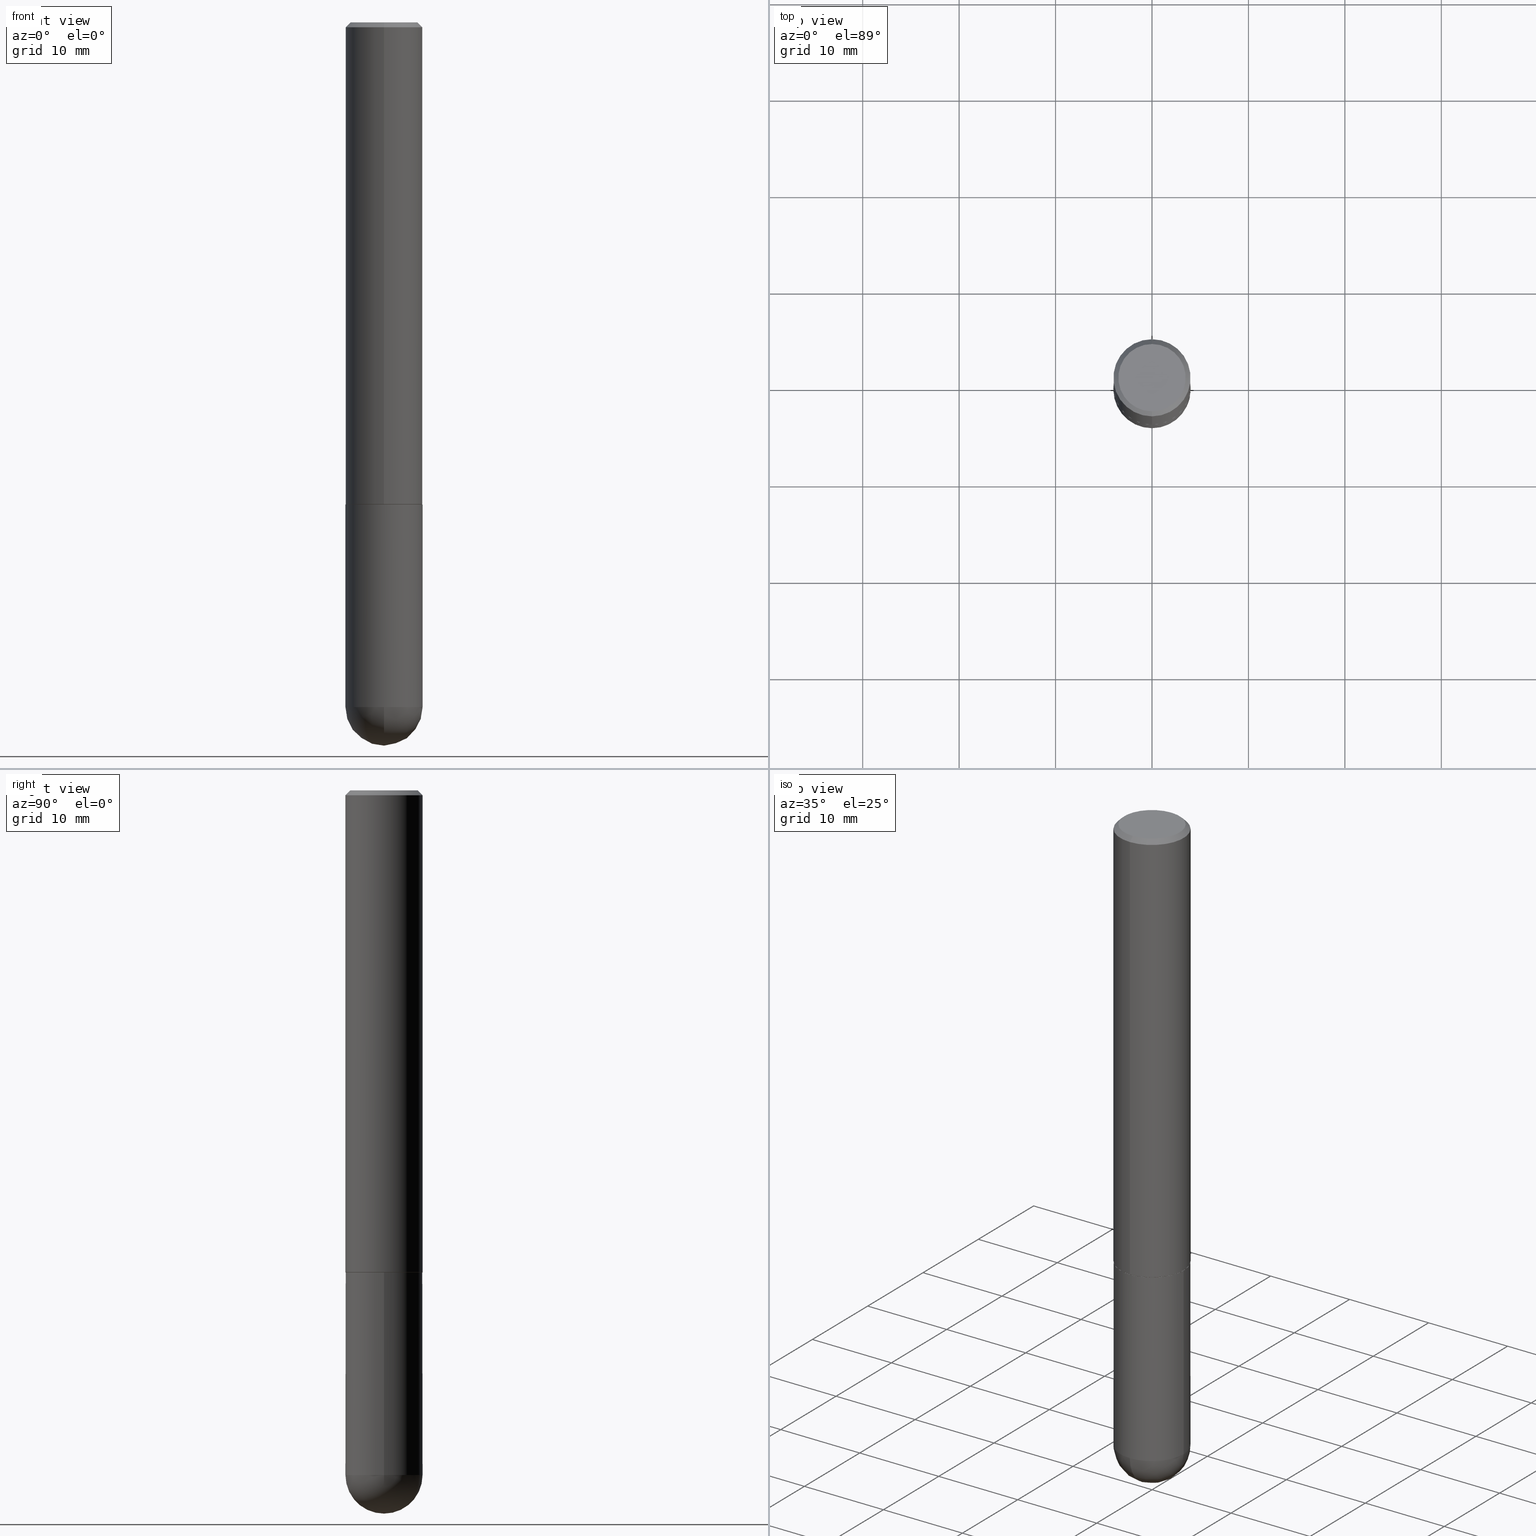
[diagram: canonical four-view strip — front | top / right | iso, engineering-drawing reading convention]
A machine part, canonical four-view strip (front | top / right | iso — engineering-drawing reading convention). The complete STEP part file that produces these views, byte-faithful:
ISO-10303-21;
HEADER;
FILE_DESCRIPTION (( 'STEP AP203' ),
    '1' );
FILE_NAME ('49561.STEP',
    '2024-04-10T12:24:30',
    ( '' ),
    ( '' ),
    'SwSTEP 2.0',
    'SolidWorks 2023',
    '' );
FILE_SCHEMA (( 'CONFIG_CONTROL_DESIGN' ));
ENDSEC;

DATA;
#1 = DIRECTION ( 'NONE',  ( -6.982962677686267499E-15, -1.000000000000000000, 3.491179544618867914E-15 ) ) ;
#2 = DIRECTION ( 'NONE',  ( -6.982962677686265922E-15, -1.000000000000000000, 3.469013325287954477E-15 ) ) ;
#3 = EDGE_LOOP ( 'NONE', ( #264, #52, #389, #22 ) ) ;
#4 = DIRECTION ( 'NONE',  ( -6.982962677686267499E-15, -1.000000000000000000, 3.491179544618867914E-15 ) ) ;
#5 = EDGE_LOOP ( 'NONE', ( #262, #361, #406, #10 ) ) ;
#6 = LOCAL_TIME ( 8, 24, 30.00000000000000000, #400 ) ;
#7 = DIRECTION ( 'NONE',  ( -2.445468806185136597E-29, 3.491481338843145583E-15, 1.000000000000000000 ) ) ;
#8 = VERTEX_POINT ( 'NONE', #401 ) ;
#9 = DIRECTION ( 'NONE',  ( -2.445468806185136597E-29, 3.491481338843145583E-15, 1.000000000000000000 ) ) ;
#10 = ORIENTED_EDGE ( 'NONE', *, *, #65, .F. ) ;
#11 = ADVANCED_BREP_SHAPE_REPRESENTATION ( '49561', ( #322, #46, #391 ), #281 ) ;
#12 = ORIENTED_EDGE ( 'NONE', *, *, #252, .F. ) ;
#13 = CLOSED_SHELL ( 'NONE', ( #309, #313, #259, #112, #342 ) ) ;
#14 = PERSON_AND_ORGANIZATION ( #316, #213 ) ;
#15 = LOCAL_TIME ( 8, 24, 30.00000000000000000, #243 ) ;
#16 = DIRECTION ( 'NONE',  ( -1.000000000000000000, 6.982962677686265922E-15, -4.876176775795935793E-29 ) ) ;
#17 = DIRECTION ( 'NONE',  ( -4.937700262164294818E-15, -0.7071067811865088260, 0.7071067811865862085 ) ) ;
#18 = EDGE_CURVE ( 'NONE', #45, #38, #117, .T. ) ;
#19 = LINE ( 'NONE', #57, #212 ) ;
#20 = EDGE_CURVE ( 'NONE', #72, #384, #200, .T. ) ;
#21 = COORDINATED_UNIVERSAL_TIME_OFFSET ( 5, 0, .BEHIND. ) ;
#22 = ORIENTED_EDGE ( 'NONE', *, *, #20, .F. ) ;
#23 = CIRCLE ( 'NONE', #362, 0.1564999999999999447 ) ;
#24 = CARTESIAN_POINT ( 'NONE',  ( 4.825502781678292621E-29, -6.849379294212400691E-15, -1.967499999999999805 ) ) ;
#25 = DIRECTION ( 'NONE',  ( 1.000000000000000000, -6.982962677686261977E-15, 0.000000000000000000 ) ) ;
#26 = EDGE_CURVE ( 'NONE', #168, #302, #305, .T. ) ;
#27 = CARTESIAN_POINT ( 'NONE',  ( 4.905212484552274391E-31, -6.962520248246417464E-17, -0.02000000000000003164 ) ) ;
#28 = CARTESIAN_POINT ( 'NONE',  ( -1.011923454671300645E-15, -0.1375000000000000666, 3.662865253003379997E-16 ) ) ;
#29 = EDGE_CURVE ( 'NONE', #168, #38, #308, .T. ) ;
#30 = CARTESIAN_POINT ( 'NONE',  ( 0.000000000000000000, 0.000000000000000000, 0.000000000000000000 ) ) ;
#31 = EDGE_CURVE ( 'NONE', #384, #45, #404, .T. ) ;
#32 = CARTESIAN_POINT ( 'NONE',  ( 6.504699176015425459E-29, -1.023392015460829390E-14, -2.795299999999999674 ) ) ;
#33 = LOCAL_TIME ( 8, 24, 30.00000000000000000, #256 ) ;
#34 = APPLICATION_CONTEXT ( 'configuration controlled 3d designs of mechanical parts and assemblies' ) ;
#35 = CIRCLE ( 'NONE', #82, 0.1574999999999999456 ) ;
#36 = LOCAL_TIME ( 8, 24, 30.00000000000000000, #21 ) ;
#37 = PERSON_AND_ORGANIZATION ( #316, #213 ) ;
#38 = VERTEX_POINT ( 'NONE', #274 ) ;
#39 =( NAMED_UNIT ( * ) SI_UNIT ( $, .STERADIAN. ) SOLID_ANGLE_UNIT ( ) );
#40 = ORIENTED_EDGE ( 'NONE', *, *, #183, .F. ) ;
#41 = EDGE_CURVE ( 'NONE', #302, #168, #149, .T. ) ;
#42 = PLANE ( 'NONE',  #296 ) ;
#43 = ORIENTED_EDGE ( 'NONE', *, *, #29, .F. ) ;
#44 = AXIS2_PLACEMENT_3D ( 'NONE', #32, #128, #379 ) ;
#45 = VERTEX_POINT ( 'NONE', #340 ) ;
#46 = MANIFOLD_SOLID_BREP ( 'Body-Move/Copy2[2]', #188 ) ;
#47 = CARTESIAN_POINT ( 'NONE',  ( 6.835818953929311707E-29, -9.759737786468243605E-15, -2.795299999999999674 ) ) ;
#48 = ORIENTED_EDGE ( 'NONE', *, *, #183, .T. ) ;
#49 = DATE_TIME_ROLE ( 'classification_date' ) ;
#50 = DIRECTION ( 'NONE',  ( -6.982962677686265922E-15, -1.000000000000000000, 3.481260124123204048E-15 ) ) ;
#51 = CIRCLE ( 'NONE', #261, 0.1575000000000001954 ) ;
#52 = ORIENTED_EDGE ( 'NONE', *, *, #298, .T. ) ;
#53 = DIRECTION ( 'NONE',  ( 6.982962677686265922E-15, 1.000000000000000000, -3.469013325287954477E-15 ) ) ;
#54 = CC_DESIGN_PERSON_AND_ORGANIZATION_ASSIGNMENT ( #240, #364, ( #62 ) ) ;
#55 = DIRECTION ( 'NONE',  ( 1.000000000000000000, -6.982962677686261977E-15, 0.000000000000000000 ) ) ;
#56 = AXIS2_PLACEMENT_3D ( 'NONE', #30, #353, #89 ) ;
#57 = CARTESIAN_POINT ( 'NONE',  ( -1.080528434649015385E-15, -0.1575000000000000289, -0.01999999999999948347 ) ) ;
#58 = AXIS2_PLACEMENT_3D ( 'NONE', #123, #68, #403 ) ;
#59 = EDGE_CURVE ( 'NONE', #384, #326, #311, .T. ) ;
#60 = CARTESIAN_POINT ( 'NONE',  ( -0.1575000000000000011, 1.119104808822157801E-15, -7.747322767151475583E-30 ) ) ;
#61 = LINE ( 'NONE', #186, #184 ) ;
#62 = PRODUCT_DEFINITION_FORMATION_WITH_SPECIFIED_SOURCE ( 'ANY', '', #303, .NOT_KNOWN. ) ;
#63 = DIRECTION ( 'NONE',  ( 1.000000000000000000, -6.982962677686261977E-15, 0.000000000000000000 ) ) ;
#64 = ORIENTED_EDGE ( 'NONE', *, *, #59, .F. ) ;
#65 = EDGE_CURVE ( 'NONE', #45, #384, #51, .T. ) ;
#66 = CARTESIAN_POINT ( 'NONE',  ( 6.896594947516873652E-29, -1.077418437193280573E-14, -2.952799999999999869 ) ) ;
#67 = ADVANCED_FACE ( 'NONE', ( #151 ), #239, .F. ) ;
#68 = DIRECTION ( 'NONE',  ( -1.000000000000000000, 6.982962677686265922E-15, -4.883557194083112901E-29 ) ) ;
#69 = DIRECTION ( 'NONE',  ( 1.000000000000000000, 0.000000000000000000, 0.000000000000000000 ) ) ;
#70 = VECTOR ( 'NONE', #314, 39.37007874015748143 ) ;
#71 = LENGTH_MEASURE_WITH_UNIT ( LENGTH_MEASURE( 0.02539999999999999897 ), #130 );
#72 = VERTEX_POINT ( 'NONE', #205 ) ;
#73 = VERTEX_POINT ( 'NONE', #373 ) ;
#74 = DIRECTION ( 'NONE',  ( 2.452606242276133237E-29, -3.481260124123204048E-15, -1.000000000000000000 ) ) ;
#75 = ORIENTED_EDGE ( 'NONE', *, *, #223, .T. ) ;
#76 = AXIS2_PLACEMENT_3D ( 'NONE', #179, #371, #83 ) ;
#77 = FACE_OUTER_BOUND ( 'NONE', #139, .T. ) ;
#78 = ORIENTED_EDGE ( 'NONE', *, *, #331, .F. ) ;
#79 = CC_DESIGN_DATE_AND_TIME_ASSIGNMENT ( #147, #49, ( #369 ) ) ;
#80 = DIRECTION ( 'NONE',  ( -2.452606242276133797E-29, 3.481260124123203654E-15, 1.000000000000000000 ) ) ;
#81 = FACE_OUTER_BOUND ( 'NONE', #294, .T. ) ;
#82 = AXIS2_PLACEMENT_3D ( 'NONE', #350, #251, #2 ) ;
#83 = DIRECTION ( 'NONE',  ( -6.982962677686265922E-15, -1.000000000000000000, 3.481260124123204048E-15 ) ) ;
#84 = APPROVAL ( #145, 'UNSPECIFIED' ) ;
#85 = DIRECTION ( 'NONE',  ( -6.982962677686265922E-15, -1.000000000000000000, 3.481260124123203654E-15 ) ) ;
#86 = DIRECTION ( 'NONE',  ( -6.982962677686265922E-15, -1.000000000000000000, 3.469013325287948955E-15 ) ) ;
#87 = ADVANCED_FACE ( 'NONE', ( #277 ), #347, .T. ) ;
#88 = AXIS2_PLACEMENT_3D ( 'NONE', #174, #148, #55 ) ;
#89 = DIRECTION ( 'NONE',  ( -6.982962677686265922E-15, -1.000000000000000000, 3.481260124123204048E-15 ) ) ;
#90 = LOCAL_TIME ( 8, 24, 30.00000000000000000, #169 ) ;
#91 = DIRECTION ( 'NONE',  ( 6.982962677686265922E-15, 1.000000000000000000, -3.469013325287946588E-15 ) ) ;
#92 = DIRECTION ( 'NONE',  ( -2.452606242276133797E-29, 3.481260124123203654E-15, 1.000000000000000000 ) ) ;
#93 = CARTESIAN_POINT ( 'NONE',  ( 0.1575000000000000011, -9.416176022726072770E-15, -2.795299999999999674 ) ) ;
#94 = CIRCLE ( 'NONE', #160, 0.1575000000000000011 ) ;
#95 = DIRECTION ( 'NONE',  ( -2.452606242276133797E-29, 3.481260124123203654E-15, 1.000000000000000000 ) ) ;
#96 = EDGE_LOOP ( 'NONE', ( #194, #48, #101, #365 ) ) ;
#97 = FACE_OUTER_BOUND ( 'NONE', #5, .T. ) ;
#98 = ORIENTED_EDGE ( 'NONE', *, *, #397, .T. ) ;
#99 = CIRCLE ( 'NONE', #319, 0.1575000000000000011 ) ;
#100 = DIRECTION ( 'NONE',  ( 1.000000000000000000, -6.982962677686268288E-15, 0.000000000000000000 ) ) ;
#101 = ORIENTED_EDGE ( 'NONE', *, *, #412, .F. ) ;
#102 = PERSON_AND_ORGANIZATION_ROLE ( 'design_owner' ) ;
#103 = VERTEX_POINT ( 'NONE', #119 ) ;
#104 =( NAMED_UNIT ( * ) PLANE_ANGLE_UNIT ( ) SI_UNIT ( $, .RADIAN. ) );
#105 = ORIENTED_EDGE ( 'NONE', *, *, #220, .F. ) ;
#106 = APPROVAL_PERSON_ORGANIZATION ( #304, #84, #312 ) ;
#107 = PRODUCT_DEFINITION ( 'UNKNOWN', '', #62, #229 ) ;
#108 = AXIS2_PLACEMENT_3D ( 'NONE', #284, #92, #217 ) ;
#109 = APPROVAL_STATUS ( 'not_yet_approved' ) ;
#110 = ORIENTED_EDGE ( 'NONE', *, *, #124, .T. ) ;
#111 = CARTESIAN_POINT ( 'NONE',  ( 1.119104808822158195E-15, 0.1575000000000000844, -5.482984695494049531E-16 ) ) ;
#112 = ADVANCED_FACE ( 'NONE', ( #348 ), #398, .F. ) ;
#113 = CALENDAR_DATE ( 2024, 10, 4 ) ;
#114 = DIRECTION ( 'NONE',  ( -2.452606242276134078E-29, 3.481260124123204048E-15, 1.000000000000000000 ) ) ;
#115 = AXIS2_PLACEMENT_3D ( 'NONE', #394, #368, #245 ) ;
#116 = DATE_TIME_ROLE ( 'creation_date' ) ;
#117 = LINE ( 'NONE', #111, #70 ) ;
#118 = VERTEX_POINT ( 'NONE', #143 ) ;
#119 = CARTESIAN_POINT ( 'NONE',  ( -0.1575000000000000011, -7.197254592168330052E-15, -1.968499999999999694 ) ) ;
#120 = VECTOR ( 'NONE', #17, 39.37007874015748143 ) ;
#121 = CIRCLE ( 'NONE', #141, 0.1574999999999999456 ) ;
#122 = CARTESIAN_POINT ( 'NONE',  ( 0.000000000000000000, 0.000000000000000000, 0.000000000000000000 ) ) ;
#123 = CARTESIAN_POINT ( 'NONE',  ( 6.504699176015425459E-29, -1.023392015460829390E-14, -2.795299999999999674 ) ) ;
#124 = EDGE_CURVE ( 'NONE', #302, #326, #19, .T. ) ;
#125 = UNCERTAINTY_MEASURE_WITH_UNIT (LENGTH_MEASURE( 1.000000000000000082E-05 ), #224, 'distance_accuracy_value', 'NONE');
#126 = APPLICATION_CONTEXT ( 'configuration controlled 3d designs of mechanical parts and assemblies' ) ;
#127 = DIRECTION ( 'NONE',  ( -2.445468806185136877E-29, 3.491481338843145188E-15, 1.000000000000000000 ) ) ;
#128 = DIRECTION ( 'NONE',  ( -1.000000000000000000, 7.105427357601001070E-15, -4.926315508542082329E-29 ) ) ;
#129 = ADVANCED_FACE ( 'NONE', ( #270 ), #226, .T. ) ;
#130 =( LENGTH_UNIT ( ) NAMED_UNIT ( * ) SI_UNIT ( $, .METRE. ) );
#131 = EDGE_LOOP ( 'NONE', ( #282, #230 ) ) ;
#132 = DIRECTION ( 'NONE',  ( -2.452606242276133797E-29, 3.481260124123203654E-15, 1.000000000000000000 ) ) ;
#133 = EDGE_LOOP ( 'NONE', ( #199, #392 ) ) ;
#134 = AXIS2_PLACEMENT_3D ( 'NONE', #411, #159, #351 ) ;
#135 = ADVANCED_FACE ( 'NONE', ( #81 ), #399, .T. ) ;
#136 = ORIENTED_EDGE ( 'NONE', *, *, #331, .T. ) ;
#137 = PERSON_AND_ORGANIZATION_ROLE ( 'creator' ) ;
#138 = EDGE_CURVE ( 'NONE', #232, #266, #341, .T. ) ;
#139 = EDGE_LOOP ( 'NONE', ( #330, #300, #297, #238, #164 ) ) ;
#140 = ORIENTED_EDGE ( 'NONE', *, *, #65, .T. ) ;
#141 = AXIS2_PLACEMENT_3D ( 'NONE', #27, #214, #408 ) ;
#142 = CC_DESIGN_SECURITY_CLASSIFICATION ( #369, ( #62 ) ) ;
#143 = CARTESIAN_POINT ( 'NONE',  ( 1.115552095143405811E-15, 0.1564999999999930891, -1.968500000000000583 ) ) ;
#144 = CC_DESIGN_PERSON_AND_ORGANIZATION_ASSIGNMENT ( #337, #343, ( #62 ) ) ;
#145 = APPROVAL_STATUS ( 'not_yet_approved' ) ;
#146 = DIRECTION ( 'NONE',  ( -2.452606242276133797E-29, 3.481260124123203654E-15, 1.000000000000000000 ) ) ;
#147 = DATE_AND_TIME ( #210, #6 ) ;
#148 = DIRECTION ( 'NONE',  ( -2.445468806185136597E-29, 3.491481338843145583E-15, 1.000000000000000000 ) ) ;
#149 = CIRCLE ( 'NONE', #218, 0.1375000000000000666 ) ;
#150 = CALENDAR_DATE ( 2024, 10, 4 ) ;
#151 = FACE_OUTER_BOUND ( 'NONE', #133, .T. ) ;
#152 = CARTESIAN_POINT ( 'NONE',  ( 2.756404244058457991E-45, -3.912474825922058918E-31, -1.123867417666027294E-16 ) ) ;
#153 = CC_DESIGN_DATE_AND_TIME_ASSIGNMENT ( #172, #116, ( #107 ) ) ;
#154 = CARTESIAN_POINT ( 'NONE',  ( 6.504699176015425459E-29, -1.023392015460829390E-14, -2.795299999999999674 ) ) ;
#155 = CONICAL_SURFACE ( 'NONE', #108, 0.1564999999999999447, 0.7853981633973970977 ) ;
#156 = CARTESIAN_POINT ( 'NONE',  ( 6.835818953929311707E-29, -9.759737786468243605E-15, -2.795299999999999674 ) ) ;
#157 = FACE_OUTER_BOUND ( 'NONE', #386, .T. ) ;
#158 = CARTESIAN_POINT ( 'NONE',  ( 6.504699176015425459E-29, -1.023392015460829390E-14, -2.795299999999999674 ) ) ;
#159 = DIRECTION ( 'NONE',  ( -2.452606242276133797E-29, 3.481260124123203654E-15, 1.000000000000000000 ) ) ;
#160 = AXIS2_PLACEMENT_3D ( 'NONE', #335, #9, #100 ) ;
#161 = DATE_AND_TIME ( #196, #33 ) ;
#162 = EDGE_LOOP ( 'NONE', ( #40, #328, #227, #12 ) ) ;
#163 = CARTESIAN_POINT ( 'NONE',  ( 0.000000000000000000, 0.000000000000000000, 0.000000000000000000 ) ) ;
#164 = ORIENTED_EDGE ( 'NONE', *, *, #366, .F. ) ;
#165 = ORIENTED_EDGE ( 'NONE', *, *, #18, .T. ) ;
#166 = AXIS2_PLACEMENT_3D ( 'NONE', #47, #7, #327 ) ;
#167 = ORIENTED_EDGE ( 'NONE', *, *, #301, .T. ) ;
#168 = VERTEX_POINT ( 'NONE', #175 ) ;
#169 = COORDINATED_UNIVERSAL_TIME_OFFSET ( 5, 0, .BEHIND. ) ;
#170 = CARTESIAN_POINT ( 'NONE',  ( 1.099816621735634812E-15, 0.1574999999999931177, -1.968500000000000361 ) ) ;
#171 = AXIS2_PLACEMENT_3D ( 'NONE', #191, #228, #198 ) ;
#172 = DATE_AND_TIME ( #207, #36 ) ;
#173 = CARTESIAN_POINT ( 'NONE',  ( -1.092833659057852162E-15, -0.1565000000000068281, -1.968499999999999472 ) ) ;
#174 = CARTESIAN_POINT ( 'NONE',  ( 6.835818953929311707E-29, -9.759737786468243605E-15, -2.795299999999999674 ) ) ;
#175 = CARTESIAN_POINT ( 'NONE',  ( 1.029986994958724576E-15, 0.1375000000000000666, -5.910600088335435079E-16 ) ) ;
#176 = APPROVAL_PERSON_ORGANIZATION ( #37, #255, #360 ) ;
#177 = AXIS2_PLACEMENT_3D ( 'NONE', #154, #250, #221 ) ;
#178 = CC_DESIGN_PERSON_AND_ORGANIZATION_ASSIGNMENT ( #383, #137, ( #107 ) ) ;
#179 = CARTESIAN_POINT ( 'NONE',  ( 4.827955387920569844E-29, -6.852860554336525962E-15, -1.968500000000000139 ) ) ;
#180 = DIRECTION ( 'NONE',  ( -2.445468806185136877E-29, 3.491481338843145188E-15, 1.000000000000000000 ) ) ;
#181 = SPHERICAL_SURFACE ( 'NONE', #58, 0.1575000000000003064 ) ;
#182 = ORIENTED_EDGE ( 'NONE', *, *, #292, .T. ) ;
#183 = EDGE_CURVE ( 'NONE', #197, #222, #380, .T. ) ;
#184 = VECTOR ( 'NONE', #127, 39.37007874015748143 ) ;
#185 = LINE ( 'NONE', #60, #203 ) ;
#186 = CARTESIAN_POINT ( 'NONE',  ( 0.1575000000000000011, -1.099816621735586889E-15, 7.679978421878598033E-30 ) ) ;
#187 = DIRECTION ( 'NONE',  ( 5.024295867787803643E-15, 0.7071067811865135999, 0.7071067811865812125 ) ) ;
#188 = CLOSED_SHELL ( 'NONE', ( #279, #215, #129, #135, #87, #375, #67, #407 ) ) ;
#189 = CIRCLE ( 'NONE', #349, 0.1575000000000000011 ) ;
#190 = ORIENTED_EDGE ( 'NONE', *, *, #29, .T. ) ;
#191 = CARTESIAN_POINT ( 'NONE',  ( 0.000000000000000000, 0.000000000000000000, 0.000000000000000000 ) ) ;
#192 = ORIENTED_EDGE ( 'NONE', *, *, #223, .F. ) ;
#193 = DIRECTION ( 'NONE',  ( 0.000000000000000000, 0.000000000000000000, 1.000000000000000000 ) ) ;
#194 = ORIENTED_EDGE ( 'NONE', *, *, #209, .F. ) ;
#195 = EDGE_CURVE ( 'NONE', #72, #118, #23, .T. ) ;
#196 = CALENDAR_DATE ( 2024, 10, 4 ) ;
#197 = VERTEX_POINT ( 'NONE', #66 ) ;
#198 = DIRECTION ( 'NONE',  ( 1.000000000000000000, -6.982962677686265922E-15, 4.876176775795935232E-29 ) ) ;
#199 = ORIENTED_EDGE ( 'NONE', *, *, #195, .F. ) ;
#200 = LINE ( 'NONE', #173, #120 ) ;
#201 = DATE_AND_TIME ( #113, #15 ) ;
#202 = CARTESIAN_POINT ( 'NONE',  ( 4.905212484552274391E-31, -6.962520248246417464E-17, -0.02000000000000003164 ) ) ;
#203 = VECTOR ( 'NONE', #180, 39.37007874015748143 ) ;
#204 = SECURITY_CLASSIFICATION_LEVEL ( 'unclassified' ) ;
#205 = CARTESIAN_POINT ( 'NONE',  ( -1.092833659057852162E-15, -0.1565000000000068281, -1.968499999999999472 ) ) ;
#206 = PRODUCT_DEFINITION_SHAPE ( 'NONE', 'NONE',  #107 ) ;
#207 = CALENDAR_DATE ( 2024, 10, 4 ) ;
#208 = DIRECTION ( 'NONE',  ( -6.982962677686265922E-15, -1.000000000000000000, 3.481260124123203654E-15 ) ) ;
#209 = EDGE_CURVE ( 'NONE', #197, #266, #268, .T. ) ;
#210 = CALENDAR_DATE ( 2024, 10, 4 ) ;
#211 = DIRECTION ( 'NONE',  ( 4.937700262164543309E-15, 0.7071067811865444641, -0.7071067811865503483 ) ) ;
#212 = VECTOR ( 'NONE', #244, 39.37007874015748854 ) ;
#213 = ORGANIZATION ( 'UNSPECIFIED', 'UNSPECIFIED', '' ) ;
#214 = DIRECTION ( 'NONE',  ( -2.452606242276133797E-29, 3.481260124123203654E-15, 1.000000000000000000 ) ) ;
#215 = ADVANCED_FACE ( 'NONE', ( #318 ), #253, .T. ) ;
#216 = CARTESIAN_POINT ( 'NONE',  ( -1.080528434649015385E-15, -0.1575000000000000289, -0.01999999999999948347 ) ) ;
#217 = DIRECTION ( 'NONE',  ( -6.982962677686267499E-15, -1.000000000000000000, 3.491179544618867914E-15 ) ) ;
#218 = AXIS2_PLACEMENT_3D ( 'NONE', #278, #80, #208 ) ;
#219 = DIRECTION ( 'NONE',  ( -2.445468806185136597E-29, 3.491481338843145583E-15, 1.000000000000000000 ) ) ;
#220 = EDGE_CURVE ( 'NONE', #232, #73, #61, .T. ) ;
#221 = DIRECTION ( 'NONE',  ( 6.982962677686265133E-15, 1.000000000000000000, 0.000000000000000000 ) ) ;
#222 = VERTEX_POINT ( 'NONE', #381 ) ;
#223 = EDGE_CURVE ( 'NONE', #38, #326, #121, .T. ) ;
#224 =( CONVERSION_BASED_UNIT ( 'INCH', #71 ) LENGTH_UNIT ( ) NAMED_UNIT ( #345 ) );
#225 = APPROVAL_STATUS ( 'not_yet_approved' ) ;
#226 = CONICAL_SURFACE ( 'NONE', #115, 0.1574999999999999456, 0.7853981633974476129 ) ;
#227 = ORIENTED_EDGE ( 'NONE', *, *, #138, .F. ) ;
#228 = DIRECTION ( 'NONE',  ( -2.445468806185136597E-29, 3.491481338843145583E-15, 1.000000000000000000 ) ) ;
#229 = DESIGN_CONTEXT ( 'detailed design', #34, 'design' ) ;
#230 = ORIENTED_EDGE ( 'NONE', *, *, #41, .T. ) ;
#231 = APPLICATION_PROTOCOL_DEFINITION ( 'international standard', 'config_control_design', 1994, #34 ) ;
#232 = VERTEX_POINT ( 'NONE', #93 ) ;
#233 = CYLINDRICAL_SURFACE ( 'NONE', #171, 0.1575000000000000011 ) ;
#234 = EDGE_LOOP ( 'NONE', ( #98, #334 ) ) ;
#235 = AXIS2_PLACEMENT_3D ( 'NONE', #122, #286, #323 ) ;
#236 = CIRCLE ( 'NONE', #288, 0.1575000000000000011 ) ;
#237 = CC_DESIGN_PERSON_AND_ORGANIZATION_ASSIGNMENT ( #387, #102, ( #303 ) ) ;
#238 = ORIENTED_EDGE ( 'NONE', *, *, #220, .T. ) ;
#239 = PLANE ( 'NONE',  #76 ) ;
#240 = PERSON_AND_ORGANIZATION ( #316, #213 ) ;
#241 = DIRECTION ( 'NONE',  ( -2.452606242276133797E-29, 3.481260124123203654E-15, 1.000000000000000000 ) ) ;
#242 = CC_DESIGN_APPROVAL ( #255, ( #107 ) ) ;
#243 = COORDINATED_UNIVERSAL_TIME_OFFSET ( 5, 0, .BEHIND. ) ;
#244 = DIRECTION ( 'NONE',  ( -4.851104656540959542E-15, -0.7071067811865493491, -0.7071067811865454633 ) ) ;
#245 = DIRECTION ( 'NONE',  ( 6.982962677686265922E-15, 1.000000000000000000, -3.469013325287954477E-15 ) ) ;
#246 = DIRECTION ( 'NONE',  ( -2.452606242276133797E-29, 3.481260124123203654E-15, 1.000000000000000000 ) ) ;
#247 = AXIS2_PLACEMENT_3D ( 'NONE', #170, #306, #16 ) ;
#248 = CARTESIAN_POINT ( 'NONE',  ( 6.835818953929311707E-29, -9.759737786468243605E-15, -2.795299999999999674 ) ) ;
#249 = ORIENTED_EDGE ( 'NONE', *, *, #31, .T. ) ;
#250 = DIRECTION ( 'NONE',  ( 1.000000000000000000, -6.982962677686265922E-15, 4.883557194083112340E-29 ) ) ;
#251 = DIRECTION ( 'NONE',  ( -2.452606242276133797E-29, 3.481260124123203654E-15, 1.000000000000000000 ) ) ;
#252 = EDGE_CURVE ( 'NONE', #222, #232, #236, .T. ) ;
#253 = CYLINDRICAL_SURFACE ( 'NONE', #56, 0.1575000000000000844 ) ;
#254 = ORIENTED_EDGE ( 'NONE', *, *, #397, .F. ) ;
#255 = APPROVAL ( #225, 'UNSPECIFIED' ) ;
#256 = COORDINATED_UNIVERSAL_TIME_OFFSET ( 5, 0, .BEHIND. ) ;
#257 = MECHANICAL_CONTEXT ( 'NONE', #126, 'mechanical' ) ;
#258 = EDGE_LOOP ( 'NONE', ( #249, #165, #78, #64 ) ) ;
#259 = ADVANCED_FACE ( 'NONE', ( #354 ), #181, .T. ) ;
#260 = CARTESIAN_POINT ( 'NONE',  ( 4.827955387920569844E-29, -6.852860554336525962E-15, -1.968500000000000139 ) ) ;
#261 = AXIS2_PLACEMENT_3D ( 'NONE', #374, #241, #86 ) ;
#262 = ORIENTED_EDGE ( 'NONE', *, *, #298, .F. ) ;
#263 = CARTESIAN_POINT ( 'NONE',  ( -1.099816621735539951E-15, -0.1575000000000070510, -1.967499999999999138 ) ) ;
#264 = ORIENTED_EDGE ( 'NONE', *, *, #195, .T. ) ;
#265 = FACE_OUTER_BOUND ( 'NONE', #131, .T. ) ;
#266 = VERTEX_POINT ( 'NONE', #287 ) ;
#267 = ORIENTED_EDGE ( 'NONE', *, *, #59, .T. ) ;
#268 = CIRCLE ( 'NONE', #177, 0.1575000000000003064 ) ;
#269 = APPROVAL_PERSON_ORGANIZATION ( #14, #393, #273 ) ;
#270 = FACE_OUTER_BOUND ( 'NONE', #358, .T. ) ;
#271 = SHAPE_DEFINITION_REPRESENTATION ( #206, #11 ) ;
#272 = DIRECTION ( 'NONE',  ( -6.982962677686265922E-15, -1.000000000000000000, 3.469013325287948955E-15 ) ) ;
#273 = APPROVAL_ROLE ( '' ) ;
#274 = CARTESIAN_POINT ( 'NONE',  ( 1.099816621735586889E-15, 0.1574999999999998901, -0.02000000000000057634 ) ) ;
#275 = AXIS2_PLACEMENT_3D ( 'NONE', #152, #246, #85 ) ;
#276 = VECTOR ( 'NONE', #187, 39.37007874015748854 ) ;
#277 = FACE_OUTER_BOUND ( 'NONE', #390, .T. ) ;
#278 = CARTESIAN_POINT ( 'NONE',  ( 2.756404244058457991E-45, -3.912474825922058918E-31, -1.123867417666027294E-16 ) ) ;
#279 = ADVANCED_FACE ( 'NONE', ( #378 ), #155, .T. ) ;
#280 = CYLINDRICAL_SURFACE ( 'NONE', #235, 0.1575000000000000011 ) ;
#281 =( GEOMETRIC_REPRESENTATION_CONTEXT ( 3 ) GLOBAL_UNCERTAINTY_ASSIGNED_CONTEXT ( ( #125 ) ) GLOBAL_UNIT_ASSIGNED_CONTEXT ( ( #224, #104, #39 ) ) REPRESENTATION_CONTEXT ( 'NONE', 'WORKASPACE' ) );
#282 = ORIENTED_EDGE ( 'NONE', *, *, #26, .T. ) ;
#283 = AXIS2_PLACEMENT_3D ( 'NONE', #158, #377, #91 ) ;
#284 = CARTESIAN_POINT ( 'NONE',  ( 4.827955387920569844E-29, -6.852860554336525962E-15, -1.968500000000000139 ) ) ;
#285 = EDGE_CURVE ( 'NONE', #118, #72, #385, .T. ) ;
#286 = DIRECTION ( 'NONE',  ( -2.445468806185136597E-29, 3.491481338843145583E-15, 1.000000000000000000 ) ) ;
#287 = CARTESIAN_POINT ( 'NONE',  ( 1.099816621735654731E-15, 0.1574999999999901201, -2.795300000000000118 ) ) ;
#288 = AXIS2_PLACEMENT_3D ( 'NONE', #156, #219, #63 ) ;
#289 = LINE ( 'NONE', #320, #276 ) ;
#290 = CARTESIAN_POINT ( 'NONE',  ( 9.601573681818620671E-16, 0.1375000000000000666, -5.348666379502421309E-16 ) ) ;
#291 = ORIENTED_EDGE ( 'NONE', *, *, #124, .F. ) ;
#292 = EDGE_CURVE ( 'NONE', #8, #103, #185, .T. ) ;
#293 = CARTESIAN_POINT ( 'NONE',  ( 4.813905344975440714E-29, -6.872981015512730918E-15, -1.968499999999999694 ) ) ;
#294 = EDGE_LOOP ( 'NONE', ( #291, #409, #190, #75 ) ) ;
#295 = CC_DESIGN_APPROVAL ( #84, ( #62 ) ) ;
#296 = AXIS2_PLACEMENT_3D ( 'NONE', #290, #74, #332 ) ;
#297 = ORIENTED_EDGE ( 'NONE', *, *, #252, .T. ) ;
#298 = EDGE_CURVE ( 'NONE', #118, #45, #289, .T. ) ;
#299 = APPROVAL_DATE_TIME ( #161, #255 ) ;
#300 = ORIENTED_EDGE ( 'NONE', *, *, #412, .T. ) ;
#301 = EDGE_CURVE ( 'NONE', #266, #8, #189, .T. ) ;
#302 = VERTEX_POINT ( 'NONE', #28 ) ;
#303 = PRODUCT ( '49561', '49561', '', ( #257 ) ) ;
#304 = PERSON_AND_ORGANIZATION ( #316, #213 ) ;
#305 = CIRCLE ( 'NONE', #275, 0.1375000000000000666 ) ;
#306 = DIRECTION ( 'NONE',  ( 2.438088387897960049E-29, -3.491481338843145188E-15, -1.000000000000000000 ) ) ;
#307 = AXIS2_PLACEMENT_3D ( 'NONE', #338, #402, #50 ) ;
#308 = LINE ( 'NONE', #315, #355 ) ;
#309 = ADVANCED_FACE ( 'NONE', ( #157 ), #280, .T. ) ;
#310 = APPROVAL_DATE_TIME ( #201, #84 ) ;
#311 = LINE ( 'NONE', #395, #333 ) ;
#312 = APPROVAL_ROLE ( '' ) ;
#313 = ADVANCED_FACE ( 'NONE', ( #410 ), #321, .T. ) ;
#314 = DIRECTION ( 'NONE',  ( -2.452606242276134078E-29, 3.481260124123204048E-15, 1.000000000000000000 ) ) ;
#315 = CARTESIAN_POINT ( 'NONE',  ( 1.099816621735586889E-15, 0.1574999999999998901, -0.02000000000000057634 ) ) ;
#316 = PERSON ( 'UNSPECIFIED', 'UNSPECIFIED', 'UNSPECIFIED', ('UNSPECIFIED'), ('UNSPECIFIED'), ('UNSPECIFIED') ) ;
#317 = DIRECTION ( 'NONE',  ( -2.445468806185136597E-29, 3.491481338843145583E-15, 1.000000000000000000 ) ) ;
#318 = FACE_OUTER_BOUND ( 'NONE', #258, .T. ) ;
#319 = AXIS2_PLACEMENT_3D ( 'NONE', #293, #382, #357 ) ;
#320 = CARTESIAN_POINT ( 'NONE',  ( 1.111999381464604519E-15, 0.1564999999999930891, -1.968500000000000583 ) ) ;
#321 = SPHERICAL_SURFACE ( 'NONE', #283, 0.1575000000000003064 ) ;
#322 = MANIFOLD_SOLID_BREP ( 'Body-Move/Copy2[1]', #13 ) ;
#323 = DIRECTION ( 'NONE',  ( 1.000000000000000000, -6.982962677686265922E-15, 4.876176775795935232E-29 ) ) ;
#324 = CC_DESIGN_APPROVAL ( #393, ( #369 ) ) ;
#325 = PRODUCT_RELATED_PRODUCT_CATEGORY ( 'detail', '', ( #303 ) ) ;
#326 = VERTEX_POINT ( 'NONE', #216 ) ;
#327 = DIRECTION ( 'NONE',  ( 1.000000000000000000, -6.982962677686261977E-15, 0.000000000000000000 ) ) ;
#328 = ORIENTED_EDGE ( 'NONE', *, *, #209, .T. ) ;
#329 = APPLICATION_PROTOCOL_DEFINITION ( 'international standard', 'config_control_design', 1994, #126 ) ;
#330 = ORIENTED_EDGE ( 'NONE', *, *, #292, .F. ) ;
#331 = EDGE_CURVE ( 'NONE', #326, #38, #35, .T. ) ;
#332 = DIRECTION ( 'NONE',  ( 6.982962677686265922E-15, 1.000000000000000000, -3.481260124123204048E-15 ) ) ;
#333 = VECTOR ( 'NONE', #114, 39.37007874015748143 ) ;
#334 = ORIENTED_EDGE ( 'NONE', *, *, #366, .T. ) ;
#335 = CARTESIAN_POINT ( 'NONE',  ( 4.813905344975440714E-29, -6.872981015512730918E-15, -1.968499999999999694 ) ) ;
#336 = ORIENTED_EDGE ( 'NONE', *, *, #18, .F. ) ;
#337 = PERSON_AND_ORGANIZATION ( #316, #213 ) ;
#338 = CARTESIAN_POINT ( 'NONE',  ( 0.000000000000000000, 0.000000000000000000, 0.000000000000000000 ) ) ;
#339 = AXIS2_PLACEMENT_3D ( 'NONE', #24, #146, #272 ) ;
#340 = CARTESIAN_POINT ( 'NONE',  ( 1.119104808822183241E-15, 0.1574999999999933398, -1.967500000000000249 ) ) ;
#341 = CIRCLE ( 'NONE', #88, 0.1575000000000000011 ) ;
#342 = ADVANCED_FACE ( 'NONE', ( #77 ), #233, .T. ) ;
#343 = PERSON_AND_ORGANIZATION_ROLE ( 'creator' ) ;
#344 = DIRECTION ( 'NONE',  ( 2.452606242276133797E-29, -3.481260124123203654E-15, -1.000000000000000000 ) ) ;
#345 = DIMENSIONAL_EXPONENTS ( 1.000000000000000000, 0.000000000000000000, 0.000000000000000000, 0.000000000000000000, 0.000000000000000000, 0.000000000000000000, 0.000000000000000000 ) ;
#346 = PERSON_AND_ORGANIZATION_ROLE ( 'classification_officer' ) ;
#347 = CYLINDRICAL_SURFACE ( 'NONE', #307, 0.1575000000000000844 ) ;
#348 = FACE_OUTER_BOUND ( 'NONE', #234, .T. ) ;
#349 = AXIS2_PLACEMENT_3D ( 'NONE', #248, #317, #25 ) ;
#350 = CARTESIAN_POINT ( 'NONE',  ( 4.905212484552274391E-31, -6.962520248246417464E-17, -0.02000000000000003164 ) ) ;
#351 = DIRECTION ( 'NONE',  ( -6.982962677686267499E-15, -1.000000000000000000, 3.491179544618867914E-15 ) ) ;
#352 = CIRCLE ( 'NONE', #166, 0.1575000000000000011 ) ;
#353 = DIRECTION ( 'NONE',  ( -2.452606242276133797E-29, 3.481260124123203654E-15, 1.000000000000000000 ) ) ;
#354 = FACE_OUTER_BOUND ( 'NONE', #162, .T. ) ;
#355 = VECTOR ( 'NONE', #211, 39.37007874015748854 ) ;
#356 = CONICAL_SURFACE ( 'NONE', #405, 0.1564999999999999447, 0.7853981633973970977 ) ;
#357 = DIRECTION ( 'NONE',  ( 1.000000000000000000, -6.982962677686268288E-15, 0.000000000000000000 ) ) ;
#358 = EDGE_LOOP ( 'NONE', ( #359, #110, #136, #43 ) ) ;
#359 = ORIENTED_EDGE ( 'NONE', *, *, #41, .F. ) ;
#360 = APPROVAL_ROLE ( '' ) ;
#361 = ORIENTED_EDGE ( 'NONE', *, *, #285, .T. ) ;
#362 = AXIS2_PLACEMENT_3D ( 'NONE', #376, #95, #1 ) ;
#363 = ORIENTED_EDGE ( 'NONE', *, *, #138, .T. ) ;
#364 = PERSON_AND_ORGANIZATION_ROLE ( 'design_supplier' ) ;
#365 = ORIENTED_EDGE ( 'NONE', *, *, #301, .F. ) ;
#366 = EDGE_CURVE ( 'NONE', #103, #73, #94, .T. ) ;
#367 = APPROVAL_DATE_TIME ( #396, #393 ) ;
#368 = DIRECTION ( 'NONE',  ( 2.452606242276133797E-29, -3.481260124123203654E-15, -1.000000000000000000 ) ) ;
#369 = SECURITY_CLASSIFICATION ( '', '', #204 ) ;
#370 = PERSON_AND_ORGANIZATION ( #316, #213 ) ;
#371 = DIRECTION ( 'NONE',  ( -2.452606242276133237E-29, 3.481260124123204048E-15, 1.000000000000000000 ) ) ;
#372 = AXIS2_PLACEMENT_3D ( 'NONE', #202, #344, #53 ) ;
#373 = CARTESIAN_POINT ( 'NONE',  ( 0.1575000000000000011, -7.972797637248318399E-15, -1.968499999999999694 ) ) ;
#374 = CARTESIAN_POINT ( 'NONE',  ( 4.825502781678292621E-29, -6.849379294212400691E-15, -1.967499999999999805 ) ) ;
#375 = ADVANCED_FACE ( 'NONE', ( #97 ), #356, .T. ) ;
#376 = CARTESIAN_POINT ( 'NONE',  ( 4.827955387920569844E-29, -6.852860554336525962E-15, -1.968500000000000139 ) ) ;
#377 = DIRECTION ( 'NONE',  ( -1.000000000000000000, 6.982962677686265922E-15, -4.883557194083112901E-29 ) ) ;
#378 = FACE_OUTER_BOUND ( 'NONE', #3, .T. ) ;
#379 = DIRECTION ( 'NONE',  ( -7.105427357601000281E-15, -1.000000000000000000, 0.000000000000000000 ) ) ;
#380 = CIRCLE ( 'NONE', #44, 0.1575000000000003064 ) ;
#381 = CARTESIAN_POINT ( 'NONE',  ( -1.119104808822091931E-15, -0.1575000000000101319, -2.795299999999998786 ) ) ;
#382 = DIRECTION ( 'NONE',  ( -2.445468806185136597E-29, 3.491481338843145583E-15, 1.000000000000000000 ) ) ;
#383 = PERSON_AND_ORGANIZATION ( #316, #213 ) ;
#384 = VERTEX_POINT ( 'NONE', #263 ) ;
#385 = CIRCLE ( 'NONE', #134, 0.1564999999999999447 ) ;
#386 = EDGE_LOOP ( 'NONE', ( #167, #182, #254, #105, #363 ) ) ;
#387 = PERSON_AND_ORGANIZATION ( #316, #213 ) ;
#388 = CC_DESIGN_PERSON_AND_ORGANIZATION_ASSIGNMENT ( #370, #346, ( #369 ) ) ;
#389 = ORIENTED_EDGE ( 'NONE', *, *, #31, .F. ) ;
#390 = EDGE_LOOP ( 'NONE', ( #336, #140, #267, #192 ) ) ;
#391 = AXIS2_PLACEMENT_3D ( 'NONE', #163, #193, #69 ) ;
#392 = ORIENTED_EDGE ( 'NONE', *, *, #285, .F. ) ;
#393 = APPROVAL ( #109, 'UNSPECIFIED' ) ;
#394 = CARTESIAN_POINT ( 'NONE',  ( 4.905212484552274391E-31, -6.962520248246417464E-17, -0.02000000000000003164 ) ) ;
#395 = CARTESIAN_POINT ( 'NONE',  ( -1.099816621735587480E-15, -0.1575000000000000844, 5.482984695494049531E-16 ) ) ;
#396 = DATE_AND_TIME ( #150, #90 ) ;
#397 = EDGE_CURVE ( 'NONE', #73, #103, #99, .T. ) ;
#398 = PLANE ( 'NONE',  #247 ) ;
#399 = CONICAL_SURFACE ( 'NONE', #372, 0.1574999999999999456, 0.7853981633974476129 ) ;
#400 = COORDINATED_UNIVERSAL_TIME_OFFSET ( 5, 0, .BEHIND. ) ;
#401 = CARTESIAN_POINT ( 'NONE',  ( -0.1575000000000000011, -7.197254592168330052E-15, -2.795299999999999674 ) ) ;
#402 = DIRECTION ( 'NONE',  ( -2.452606242276133797E-29, 3.481260124123203654E-15, 1.000000000000000000 ) ) ;
#403 = DIRECTION ( 'NONE',  ( 6.982962677686265922E-15, 1.000000000000000000, -3.469013325287946588E-15 ) ) ;
#404 = CIRCLE ( 'NONE', #339, 0.1575000000000001954 ) ;
#405 = AXIS2_PLACEMENT_3D ( 'NONE', #260, #132, #4 ) ;
#406 = ORIENTED_EDGE ( 'NONE', *, *, #20, .T. ) ;
#407 = ADVANCED_FACE ( 'NONE', ( #265 ), #42, .F. ) ;
#408 = DIRECTION ( 'NONE',  ( -6.982962677686265922E-15, -1.000000000000000000, 3.469013325287954477E-15 ) ) ;
#409 = ORIENTED_EDGE ( 'NONE', *, *, #26, .F. ) ;
#410 = FACE_OUTER_BOUND ( 'NONE', #96, .T. ) ;
#411 = CARTESIAN_POINT ( 'NONE',  ( 4.827955387920569844E-29, -6.852860554336525962E-15, -1.968500000000000139 ) ) ;
#412 = EDGE_CURVE ( 'NONE', #8, #222, #352, .T. ) ;
ENDSEC;
END-ISO-10303-21;
